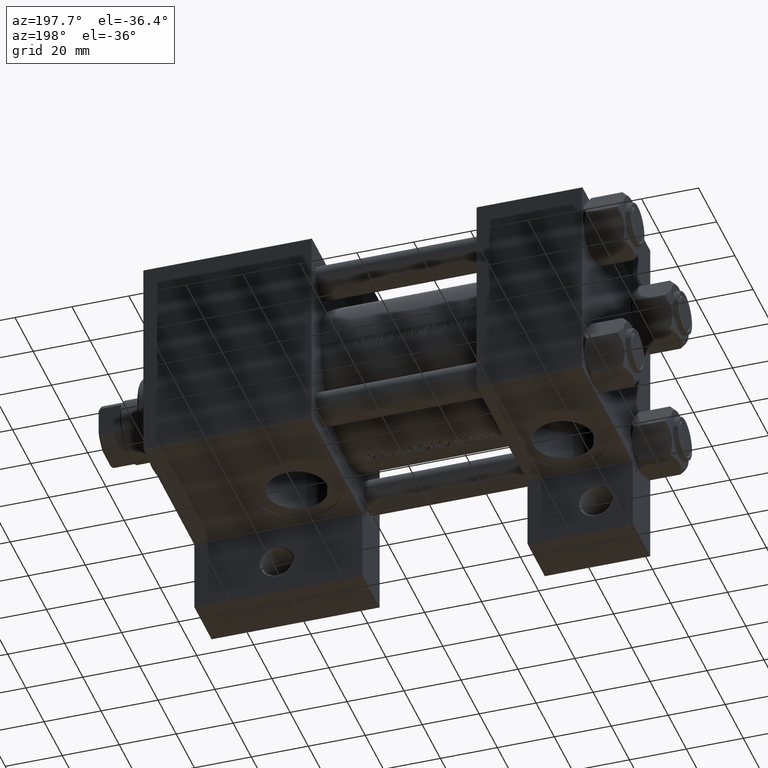
[diagram: clean part render]
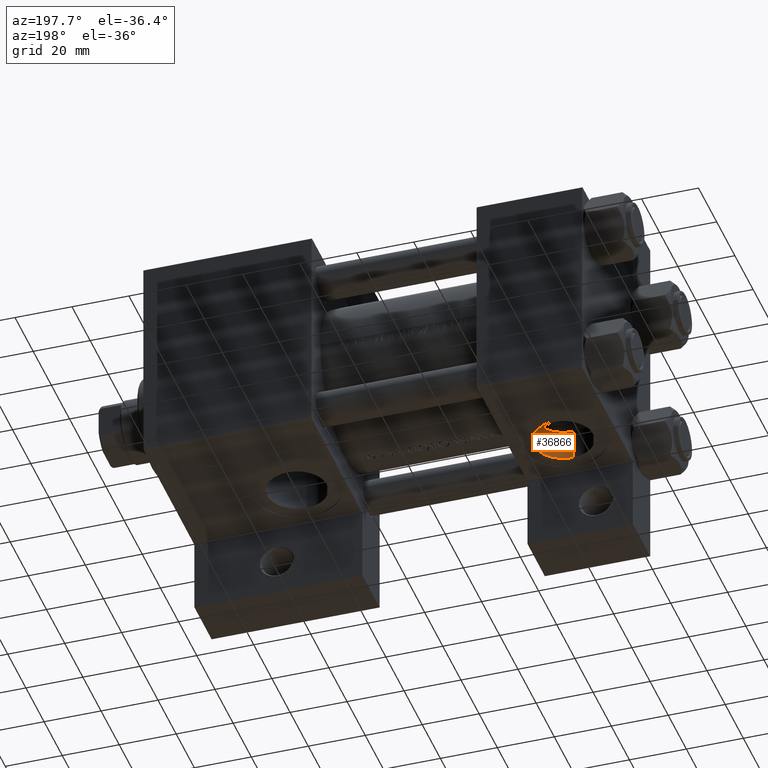
[diagram: same view with one face highlighted and labeled with its STEP entity id]
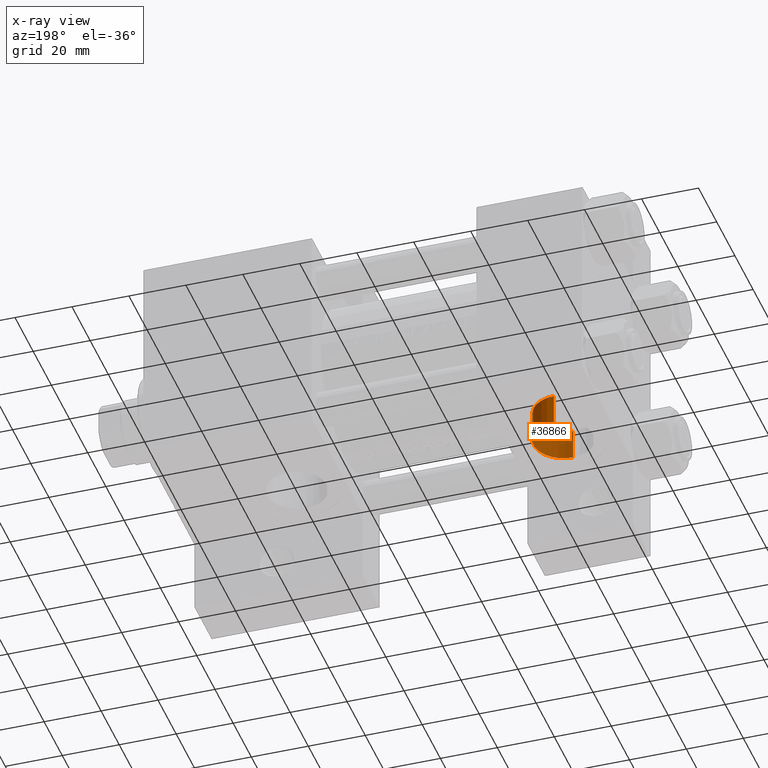
[diagram: x-ray of the same camera — body ghosted, the highlighted face saturated]
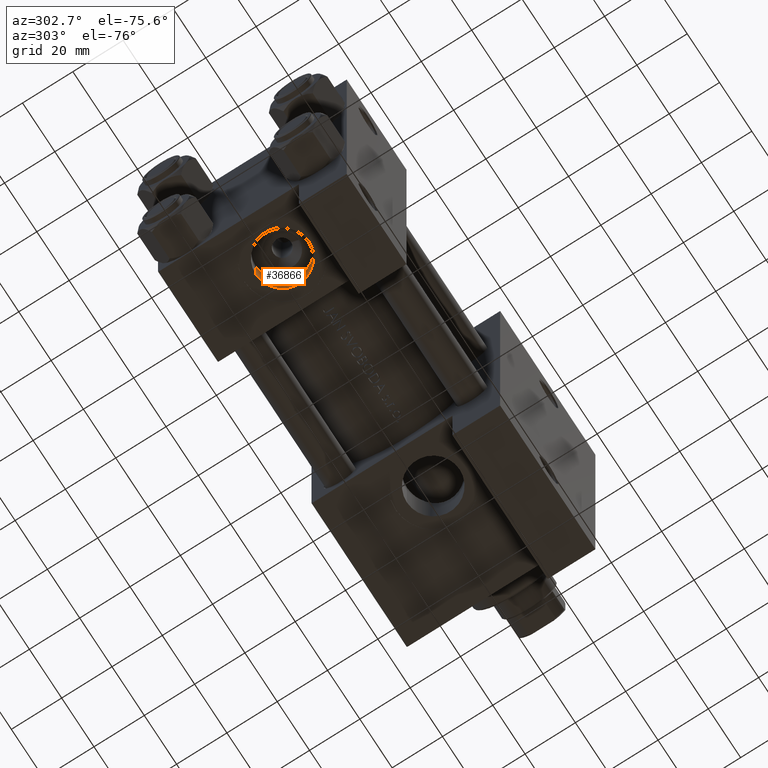
[diagram: same view with one face highlighted and labeled with its STEP entity id]
A machine part, auxiliary view. The second image highlights one B-rep face of the part: STEP entity #36866.
The next image is the same camera in x-ray: the body ghosted, the highlighted face saturated — about 0% of this face is hidden behind the body in this view.
A second angle (auxiliary view) of the same face is appended — the face is thin or edge-on in the first view.
In plain terms, the highlighted cylindrical surface (edge-blend (fillet) strip) has radius 10.48 mm, axis along (0, 0, -1).
Its self-contained STEP definition (entity closure, byte-faithful):
#964 = CIRCLE ( 'NONE', #39396, 10.48000000000000043 ) ;
#1162 = VECTOR ( 'NONE', #2025, 1000.000000000000000 ) ;
#2025 = DIRECTION ( 'NONE',  ( -0.000000000000000000, 1.000000000000000000, -0.000000000000000000 ) ) ;
#2399 = CARTESIAN_POINT ( 'NONE',  ( 18.50000000000000000, 37.29999999999999005, 10.48000000000000043 ) ) ;
#2574 = VECTOR ( 'NONE', #33159, 1000.000000000000000 ) ;
#3701 = AXIS2_PLACEMENT_3D ( 'NONE', #15480, #26287, #11382 ) ;
#5496 = VERTEX_POINT ( 'NONE', #47047 ) ;
#6273 = DIRECTION ( 'NONE',  ( 0.000000000000000000, 0.000000000000000000, 1.000000000000000000 ) ) ;
#7211 = DIRECTION ( 'NONE',  ( 0.000000000000000000, 0.000000000000000000, 1.000000000000000000 ) ) ;
#8257 = CYLINDRICAL_SURFACE ( 'NONE', #3701, 10.48000000000000043 ) ;
#8781 = CARTESIAN_POINT ( 'NONE',  ( 18.50000000000000000, 26.49999999999999289, 10.48000000000000043 ) ) ;
#9934 = ORIENTED_EDGE ( 'NONE', *, *, #18398, .F. ) ;
#11145 = FACE_OUTER_BOUND ( 'NONE', #24456, .T. ) ;
#11382 = DIRECTION ( 'NONE',  ( 0.000000000000000000, 0.000000000000000000, 1.000000000000000000 ) ) ;
#11777 = VERTEX_POINT ( 'NONE', #17734 ) ;
#12174 = VERTEX_POINT ( 'NONE', #17561 ) ;
#12183 = VERTEX_POINT ( 'NONE', #2399 ) ;
#15480 = CARTESIAN_POINT ( 'NONE',  ( 18.50000000000000000, 26.49999999999999289, 0.000000000000000000 ) ) ;
#17472 = EDGE_CURVE ( 'NONE', #12183, #12174, #964, .T. ) ;
#17561 = CARTESIAN_POINT ( 'NONE',  ( 18.50000000000000000, 37.29999999999999005, -10.48000000000000043 ) ) ;
#17734 = CARTESIAN_POINT ( 'NONE',  ( 18.50000000000000000, 26.49999999999999289, 10.48000000000000043 ) ) ;
#18398 = EDGE_CURVE ( 'NONE', #11777, #5496, #24852, .T. ) ;
#18481 = LINE ( 'NONE', #46862, #2574 ) ;
#19215 = EDGE_CURVE ( 'NONE', #5496, #12174, #18481, .T. ) ;
#21641 = DIRECTION ( 'NONE',  ( 0.000000000000000000, 1.000000000000000000, 0.000000000000000000 ) ) ;
#22170 = ORIENTED_EDGE ( 'NONE', *, *, #17472, .T. ) ;
#22178 = EDGE_CURVE ( 'NONE', #11777, #12183, #27045, .T. ) ;
#23401 = ORIENTED_EDGE ( 'NONE', *, *, #19215, .F. ) ;
#24008 = ORIENTED_EDGE ( 'NONE', *, *, #22178, .T. ) ;
#24456 = EDGE_LOOP ( 'NONE', ( #23401, #9934, #24008, #22170 ) ) ;
#24852 = CIRCLE ( 'NONE', #37924, 10.48000000000000043 ) ;
#26287 = DIRECTION ( 'NONE',  ( -0.000000000000000000, 1.000000000000000000, -0.000000000000000000 ) ) ;
#27045 = LINE ( 'NONE', #8781, #1162 ) ;
#33159 = DIRECTION ( 'NONE',  ( -0.000000000000000000, 1.000000000000000000, -0.000000000000000000 ) ) ;
#34671 = CARTESIAN_POINT ( 'NONE',  ( 18.50000000000000000, 26.49999999999999289, 0.000000000000000000 ) ) ;
#36866 = ADVANCED_FACE ( 'NONE', ( #11145 ), #8257, .F. ) ;
#37924 = AXIS2_PLACEMENT_3D ( 'NONE', #34671, #46423, #6273 ) ;
#39396 = AXIS2_PLACEMENT_3D ( 'NONE', #47599, #21641, #7211 ) ;
#46423 = DIRECTION ( 'NONE',  ( 0.000000000000000000, 1.000000000000000000, 0.000000000000000000 ) ) ;
#46862 = CARTESIAN_POINT ( 'NONE',  ( 18.50000000000000000, 26.49999999999999289, -10.48000000000000043 ) ) ;
#47047 = CARTESIAN_POINT ( 'NONE',  ( 18.50000000000000000, 26.49999999999999289, -10.48000000000000043 ) ) ;
#47599 = CARTESIAN_POINT ( 'NONE',  ( 18.50000000000000000, 37.29999999999999005, 0.000000000000000000 ) ) ;